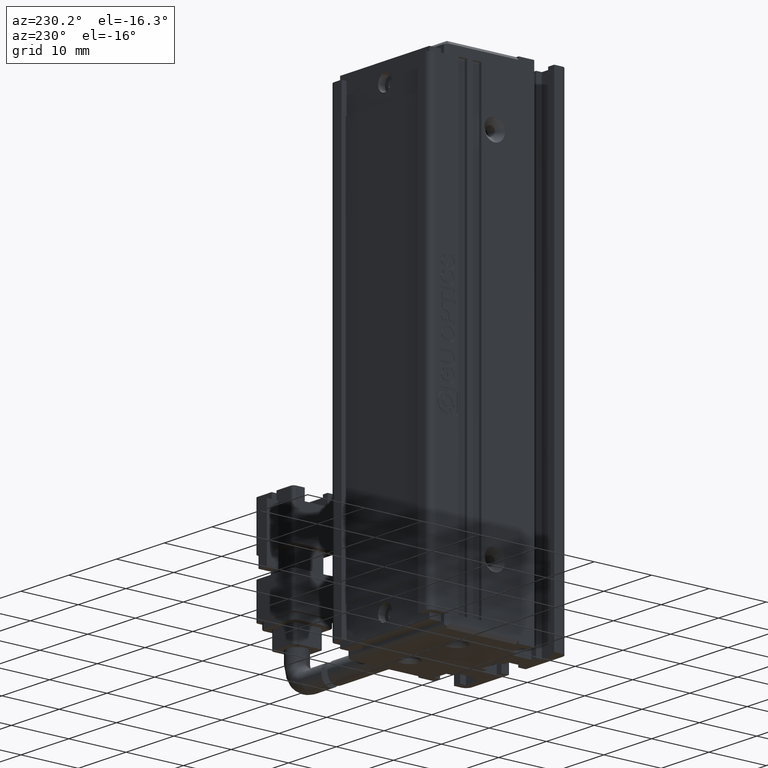
[diagram: clean part render]
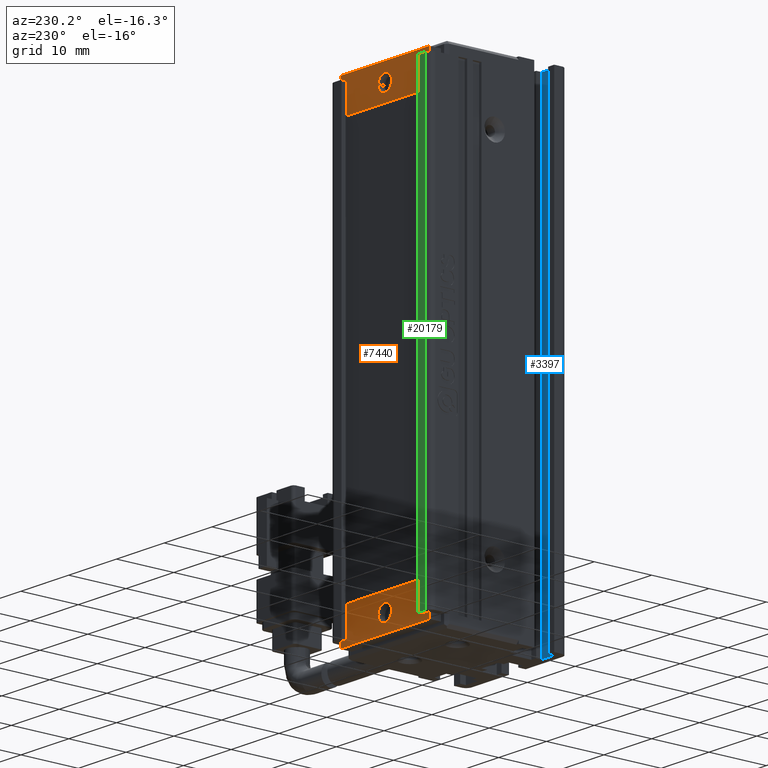
[diagram: same view with three faces highlighted in distinct colors, each labeled with its STEP entity id]
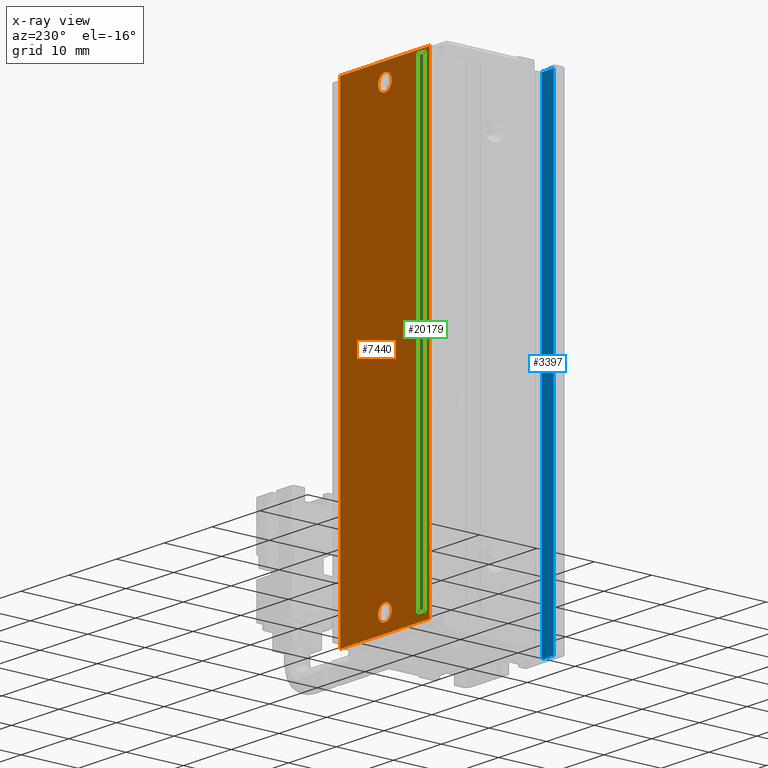
[diagram: x-ray of the same camera — body ghosted, the three highlighted faces saturated]
A machine part, auxiliary view with three faces highlighted in distinct colors.
The next image is the same camera in x-ray (body ghosted, the three faces saturated) — at least one of them is partly hidden behind the body in this view.
Their STEP definitions:

[orange] entity #7440 — the highlighted planar face has unit normal (0, 1, -0).
#498 = CARTESIAN_POINT ( 'NONE',  ( 40.92537974683541100, 34.09073232304837100, -151.9999999999999700 ) ) ;
#780 = AXIS2_PLACEMENT_3D ( 'NONE', #19192, #19289, #10125 ) ;
#809 = DIRECTION ( 'NONE',  ( -1.972601640346686500E-032, -1.000000000000000000, 3.055284262731924700E-049 ) ) ;
#935 = VECTOR ( 'NONE', #5096, 1000.000000000000000 ) ;
#1418 = VECTOR ( 'NONE', #24669, 1000.000000000000000 ) ;
#1781 = LINE ( 'NONE', #8426, #1418 ) ;
#1991 = CARTESIAN_POINT ( 'NONE',  ( 40.92537974683541800, 34.09073232304837100, -78.00000000000000000 ) ) ;
#2101 = CARTESIAN_POINT ( 'NONE',  ( 50.27537974683541900, 34.09073232304837100, -74.99999999999998600 ) ) ;
#2655 = VERTEX_POINT ( 'NONE', #27548 ) ;
#3243 = ORIENTED_EDGE ( 'NONE', *, *, #9427, .T. ) ;
#3872 = VERTEX_POINT ( 'NONE', #4911 ) ;
#4862 = VERTEX_POINT ( 'NONE', #12199 ) ;
#4865 = LINE ( 'NONE', #16348, #935 ) ;
#4911 = CARTESIAN_POINT ( 'NONE',  ( 39.52537974683541200, 34.09073232304837100, -151.9999999999999700 ) ) ;
#5043 = FACE_BOUND ( 'NONE', #17411, .T. ) ;
#5096 = DIRECTION ( 'NONE',  ( 1.379532823788130000E-016, -0.0000000000000000000, 1.000000000000000000 ) ) ;
#5287 = DIRECTION ( 'NONE',  ( -1.000000000000000000, 0.0000000000000000000, 0.0000000000000000000 ) ) ;
#5317 = VECTOR ( 'NONE', #17329, 1000.000000000000000 ) ;
#5354 = CARTESIAN_POINT ( 'NONE',  ( 39.52537974683541900, 34.09073232304837100, -78.00000000000000000 ) ) ;
#6162 = EDGE_CURVE ( 'NONE', #21064, #13158, #28472, .T. ) ;
#6311 = CARTESIAN_POINT ( 'NONE',  ( 31.57537974683541300, 34.09073232304837100, -154.9999999999999700 ) ) ;
#6404 = DIRECTION ( 'NONE',  ( -1.972601640346686500E-032, -1.000000000000000000, 3.055284262731924700E-049 ) ) ;
#7440 = ADVANCED_FACE ( 'NONE', ( #27749, #5043, #23434 ), #21643, .T. ) ;
#7821 = CARTESIAN_POINT ( 'NONE',  ( 50.27537974683541900, 34.09073232304837100, -75.00000000000000000 ) ) ;
#8117 = DIRECTION ( 'NONE',  ( 1.972601640346686500E-032, 1.000000000000000000, -3.055284262731924700E-049 ) ) ;
#8366 = CARTESIAN_POINT ( 'NONE',  ( 31.57537974683541300, 34.09073232304837100, -155.0000000000000000 ) ) ;
#8426 = CARTESIAN_POINT ( 'NONE',  ( 31.57537974683542700, 34.09073232304837100, -74.99999999999998600 ) ) ;
#8587 = ORIENTED_EDGE ( 'NONE', *, *, #11046, .T. ) ;
#8599 = EDGE_CURVE ( 'NONE', #18379, #21064, #23351, .T. ) ;
#9411 = EDGE_CURVE ( 'NONE', #2655, #3872, #10593, .T. ) ;
#9427 = EDGE_CURVE ( 'NONE', #3872, #2655, #28241, .T. ) ;
#10125 = DIRECTION ( 'NONE',  ( -1.000000000000000000, 0.0000000000000000000, 0.0000000000000000000 ) ) ;
#10593 = CIRCLE ( 'NONE', #12279, 1.399999999999998600 ) ;
#11046 = EDGE_CURVE ( 'NONE', #25565, #20605, #18730, .T. ) ;
#12199 = CARTESIAN_POINT ( 'NONE',  ( 31.57537974683542700, 34.09073232304837100, -74.99999999999998600 ) ) ;
#12279 = AXIS2_PLACEMENT_3D ( 'NONE', #498, #16746, #14531 ) ;
#12920 = DIRECTION ( 'NONE',  ( -1.000000000000000000, -0.0000000000000000000, 1.548860246407863500E-017 ) ) ;
#13158 = VERTEX_POINT ( 'NONE', #6311 ) ;
#13471 = ORIENTED_EDGE ( 'NONE', *, *, #21071, .T. ) ;
#13672 = EDGE_LOOP ( 'NONE', ( #29815, #13471, #18271, #24535 ) ) ;
#14531 = DIRECTION ( 'NONE',  ( -1.000000000000000000, 0.0000000000000000000, 0.0000000000000000000 ) ) ;
#15947 = EDGE_LOOP ( 'NONE', ( #3243, #28601 ) ) ;
#16348 = CARTESIAN_POINT ( 'NONE',  ( 31.57537974683542700, 34.09073232304837100, -74.99999999999998600 ) ) ;
#16746 = DIRECTION ( 'NONE',  ( -1.972601640346686500E-032, -1.000000000000000000, 3.055284262731924700E-049 ) ) ;
#17329 = DIRECTION ( 'NONE',  ( -1.455928631623383800E-016, -0.0000000000000000000, -1.000000000000000000 ) ) ;
#17411 = EDGE_LOOP ( 'NONE', ( #8587, #20791 ) ) ;
#18252 = EDGE_CURVE ( 'NONE', #4862, #18379, #1781, .T. ) ;
#18271 = ORIENTED_EDGE ( 'NONE', *, *, #18252, .T. ) ;
#18379 = VERTEX_POINT ( 'NONE', #2101 ) ;
#18730 = CIRCLE ( 'NONE', #27583, 1.399999999999998600 ) ;
#19192 = CARTESIAN_POINT ( 'NONE',  ( 40.92537974683541800, 34.09073232304837100, -78.00000000000000000 ) ) ;
#19289 = DIRECTION ( 'NONE',  ( -1.972601640346686500E-032, -1.000000000000000000, 3.055284262731924700E-049 ) ) ;
#19633 = DIRECTION ( 'NONE',  ( -1.000000000000000000, 1.972601640346686500E-032, 1.548860246407863500E-017 ) ) ;
#20605 = VERTEX_POINT ( 'NONE', #23576 ) ;
#20791 = ORIENTED_EDGE ( 'NONE', *, *, #21248, .T. ) ;
#21064 = VERTEX_POINT ( 'NONE', #25826 ) ;
#21071 = EDGE_CURVE ( 'NONE', #13158, #4862, #4865, .T. ) ;
#21248 = EDGE_CURVE ( 'NONE', #20605, #25565, #22864, .T. ) ;
#21268 = VECTOR ( 'NONE', #12920, 1000.000000000000000 ) ;
#21321 = CARTESIAN_POINT ( 'NONE',  ( 40.92537974683541100, 34.09073232304837100, -151.9999999999999700 ) ) ;
#21643 = PLANE ( 'NONE',  #28600 ) ;
#22864 = CIRCLE ( 'NONE', #780, 1.399999999999998600 ) ;
#23288 = AXIS2_PLACEMENT_3D ( 'NONE', #21321, #809, #5287 ) ;
#23351 = LINE ( 'NONE', #24592, #5317 ) ;
#23434 = FACE_BOUND ( 'NONE', #15947, .T. ) ;
#23576 = CARTESIAN_POINT ( 'NONE',  ( 42.32537974683541600, 34.09073232304837100, -78.00000000000000000 ) ) ;
#24535 = ORIENTED_EDGE ( 'NONE', *, *, #8599, .T. ) ;
#24592 = CARTESIAN_POINT ( 'NONE',  ( 50.27537974683541900, 34.09073232304837100, -75.00000000000000000 ) ) ;
#24669 = DIRECTION ( 'NONE',  ( 1.000000000000000000, 0.0000000000000000000, -1.548860246407863500E-017 ) ) ;
#25565 = VERTEX_POINT ( 'NONE', #5354 ) ;
#25826 = CARTESIAN_POINT ( 'NONE',  ( 50.27537974683541200, 34.09073232304837100, -154.9999999999999700 ) ) ;
#26992 = DIRECTION ( 'NONE',  ( -1.000000000000000000, 0.0000000000000000000, 0.0000000000000000000 ) ) ;
#27548 = CARTESIAN_POINT ( 'NONE',  ( 42.32537974683540900, 34.09073232304837100, -151.9999999999999700 ) ) ;
#27583 = AXIS2_PLACEMENT_3D ( 'NONE', #1991, #6404, #26992 ) ;
#27749 = FACE_OUTER_BOUND ( 'NONE', #13672, .T. ) ;
#28241 = CIRCLE ( 'NONE', #23288, 1.399999999999998600 ) ;
#28472 = LINE ( 'NONE', #8366, #21268 ) ;
#28600 = AXIS2_PLACEMENT_3D ( 'NONE', #7821, #8117, #19633 ) ;
#28601 = ORIENTED_EDGE ( 'NONE', *, *, #9411, .T. ) ;
#29815 = ORIENTED_EDGE ( 'NONE', *, *, #6162, .T. ) ;

[blue] entity #3397 — the highlighted planar face has unit normal (-0, -1, 0).
#348 = CARTESIAN_POINT ( 'NONE',  ( 40.92537974683542500, 12.29073232304837200, -74.00000000000000000 ) ) ;
#932 = ORIENTED_EDGE ( 'NONE', *, *, #21466, .F. ) ;
#2099 = VECTOR ( 'NONE', #2260, 1000.000000000000000 ) ;
#2260 = DIRECTION ( 'NONE',  ( -1.000000000000000000, -0.0000000000000000000, 0.0000000000000000000 ) ) ;
#3397 = ADVANCED_FACE ( 'NONE', ( #24787 ), #21366, .F. ) ;
#5716 = ORIENTED_EDGE ( 'NONE', *, *, #9600, .F. ) ;
#7119 = DIRECTION ( 'NONE',  ( 0.0000000000000000000, -0.0000000000000000000, -1.000000000000000000 ) ) ;
#7530 = DIRECTION ( 'NONE',  ( -7.380418287155808400E-032, -1.000000000000000000, 0.0000000000000000000 ) ) ;
#8717 = VERTEX_POINT ( 'NONE', #22575 ) ;
#9600 = EDGE_CURVE ( 'NONE', #13193, #8717, #13785, .T. ) ;
#10046 = CARTESIAN_POINT ( 'NONE',  ( 31.72537974683542600, 12.29073232304837200, -156.0000000000000000 ) ) ;
#10947 = CARTESIAN_POINT ( 'NONE',  ( 34.22537974683542900, 12.29073232304837200, -156.0000000000000000 ) ) ;
#11206 = CARTESIAN_POINT ( 'NONE',  ( 40.92537974683542500, 12.29073232304837200, -74.00000000000001400 ) ) ;
#11376 = VERTEX_POINT ( 'NONE', #10046 ) ;
#11943 = LINE ( 'NONE', #29725, #17354 ) ;
#12355 = VERTEX_POINT ( 'NONE', #19366 ) ;
#13193 = VERTEX_POINT ( 'NONE', #10947 ) ;
#13600 = DIRECTION ( 'NONE',  ( -1.000000000000000000, -0.0000000000000000000, 0.0000000000000000000 ) ) ;
#13785 = LINE ( 'NONE', #28266, #14845 ) ;
#13820 = EDGE_CURVE ( 'NONE', #13193, #11376, #29132, .T. ) ;
#14055 = ORIENTED_EDGE ( 'NONE', *, *, #15414, .F. ) ;
#14343 = DIRECTION ( 'NONE',  ( -0.0000000000000000000, 0.0000000000000000000, 1.000000000000000000 ) ) ;
#14845 = VECTOR ( 'NONE', #14343, 1000.000000000000000 ) ;
#15414 = EDGE_CURVE ( 'NONE', #12355, #11376, #11943, .T. ) ;
#17354 = VECTOR ( 'NONE', #7119, 1000.000000000000000 ) ;
#19366 = CARTESIAN_POINT ( 'NONE',  ( 31.72537974683542600, 12.29073232304837200, -74.00000000000001400 ) ) ;
#21016 = VECTOR ( 'NONE', #13600, 1000.000000000000000 ) ;
#21366 = PLANE ( 'NONE',  #25554 ) ;
#21466 = EDGE_CURVE ( 'NONE', #8717, #12355, #27148, .T. ) ;
#22575 = CARTESIAN_POINT ( 'NONE',  ( 34.22537974683542900, 12.29073232304837200, -74.00000000000001400 ) ) ;
#23002 = ORIENTED_EDGE ( 'NONE', *, *, #13820, .T. ) ;
#23695 = DIRECTION ( 'NONE',  ( 1.000000000000000000, -7.380418287155808400E-032, 0.0000000000000000000 ) ) ;
#24787 = FACE_OUTER_BOUND ( 'NONE', #26924, .T. ) ;
#25554 = AXIS2_PLACEMENT_3D ( 'NONE', #348, #7530, #23695 ) ;
#26924 = EDGE_LOOP ( 'NONE', ( #14055, #932, #5716, #23002 ) ) ;
#27148 = LINE ( 'NONE', #11206, #21016 ) ;
#27433 = CARTESIAN_POINT ( 'NONE',  ( 40.92537974683542500, 12.29073232304837200, -156.0000000000000000 ) ) ;
#28266 = CARTESIAN_POINT ( 'NONE',  ( 34.22537974683542900, 12.29073232304837200, -74.00000000000000000 ) ) ;
#29132 = LINE ( 'NONE', #27433, #2099 ) ;
#29725 = CARTESIAN_POINT ( 'NONE',  ( 31.72537974683542600, 12.29073232304837200, -74.00000000000000000 ) ) ;

[green] entity #20179 — the highlighted planar face has unit normal (0, 1, 0).
#463 = CARTESIAN_POINT ( 'NONE',  ( 31.42537974683542100, 34.99073232304836300, -154.0000000000000000 ) ) ;
#750 = DIRECTION ( 'NONE',  ( 2.312964634635741100E-015, 1.000000000000000000, 0.0000000000000000000 ) ) ;
#1344 = VERTEX_POINT ( 'NONE', #10048 ) ;
#1596 = EDGE_CURVE ( 'NONE', #2270, #4792, #8377, .T. ) ;
#2270 = VERTEX_POINT ( 'NONE', #7221 ) ;
#2292 = VECTOR ( 'NONE', #24246, 1000.000000000000000 ) ;
#4584 = LINE ( 'NONE', #26794, #22945 ) ;
#4792 = VERTEX_POINT ( 'NONE', #463 ) ;
#5636 = ORIENTED_EDGE ( 'NONE', *, *, #12239, .T. ) ;
#7221 = CARTESIAN_POINT ( 'NONE',  ( 31.42537974683542100, 34.99073232304836300, -76.00000000000001400 ) ) ;
#8208 = DIRECTION ( 'NONE',  ( -1.000000000000000000, 2.312964634635741100E-015, 0.0000000000000000000 ) ) ;
#8377 = LINE ( 'NONE', #21923, #2292 ) ;
#8556 = CARTESIAN_POINT ( 'NONE',  ( 40.92537974683548900, 34.99073232304834800, -76.00000000000001400 ) ) ;
#9874 = PLANE ( 'NONE',  #27692 ) ;
#10048 = CARTESIAN_POINT ( 'NONE',  ( 32.92537974683542500, 34.99073232304836300, -154.0000000000000000 ) ) ;
#12239 = EDGE_CURVE ( 'NONE', #2270, #14143, #12455, .T. ) ;
#12455 = LINE ( 'NONE', #8556, #16392 ) ;
#13947 = ORIENTED_EDGE ( 'NONE', *, *, #20695, .T. ) ;
#14143 = VERTEX_POINT ( 'NONE', #29424 ) ;
#15022 = ORIENTED_EDGE ( 'NONE', *, *, #23221, .T. ) ;
#15089 = FACE_OUTER_BOUND ( 'NONE', #25314, .T. ) ;
#16392 = VECTOR ( 'NONE', #22500, 1000.000000000000000 ) ;
#16596 = CARTESIAN_POINT ( 'NONE',  ( 40.92537974683548900, 34.99073232304834800, -74.00000000000001400 ) ) ;
#17543 = LINE ( 'NONE', #24634, #25147 ) ;
#18936 = DIRECTION ( 'NONE',  ( -1.000000000000000000, 2.312964634635741100E-015, 0.0000000000000000000 ) ) ;
#20179 = ADVANCED_FACE ( 'NONE', ( #15089 ), #9874, .T. ) ;
#20695 = EDGE_CURVE ( 'NONE', #1344, #4792, #4584, .T. ) ;
#21923 = CARTESIAN_POINT ( 'NONE',  ( 31.42537974683542100, 34.99073232304836300, -74.00000000000001400 ) ) ;
#22500 = DIRECTION ( 'NONE',  ( 1.000000000000000000, -2.312964634635741100E-015, -0.0000000000000000000 ) ) ;
#22690 = ORIENTED_EDGE ( 'NONE', *, *, #1596, .F. ) ;
#22945 = VECTOR ( 'NONE', #8208, 1000.000000000000000 ) ;
#23221 = EDGE_CURVE ( 'NONE', #14143, #1344, #17543, .T. ) ;
#24246 = DIRECTION ( 'NONE',  ( 0.0000000000000000000, 0.0000000000000000000, -1.000000000000000000 ) ) ;
#24634 = CARTESIAN_POINT ( 'NONE',  ( 32.92537974683542500, 34.99073232304837700, -74.00000000000001400 ) ) ;
#25147 = VECTOR ( 'NONE', #29069, 1000.000000000000000 ) ;
#25314 = EDGE_LOOP ( 'NONE', ( #13947, #22690, #5636, #15022 ) ) ;
#26794 = CARTESIAN_POINT ( 'NONE',  ( 40.92537974683548900, 34.99073232304834800, -154.0000000000000000 ) ) ;
#27692 = AXIS2_PLACEMENT_3D ( 'NONE', #16596, #750, #18936 ) ;
#29069 = DIRECTION ( 'NONE',  ( -0.0000000000000000000, -0.0000000000000000000, -1.000000000000000000 ) ) ;
#29424 = CARTESIAN_POINT ( 'NONE',  ( 32.92537974683542500, 34.99073232304837700, -76.00000000000001400 ) ) ;